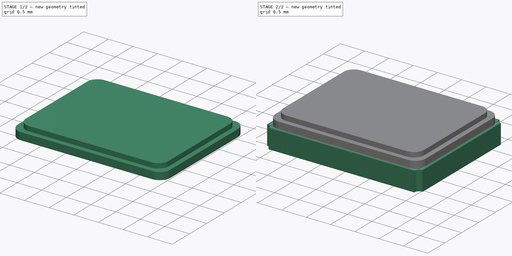
[diagram: build sequence overview — one tinted view per stage of 2, left to right]
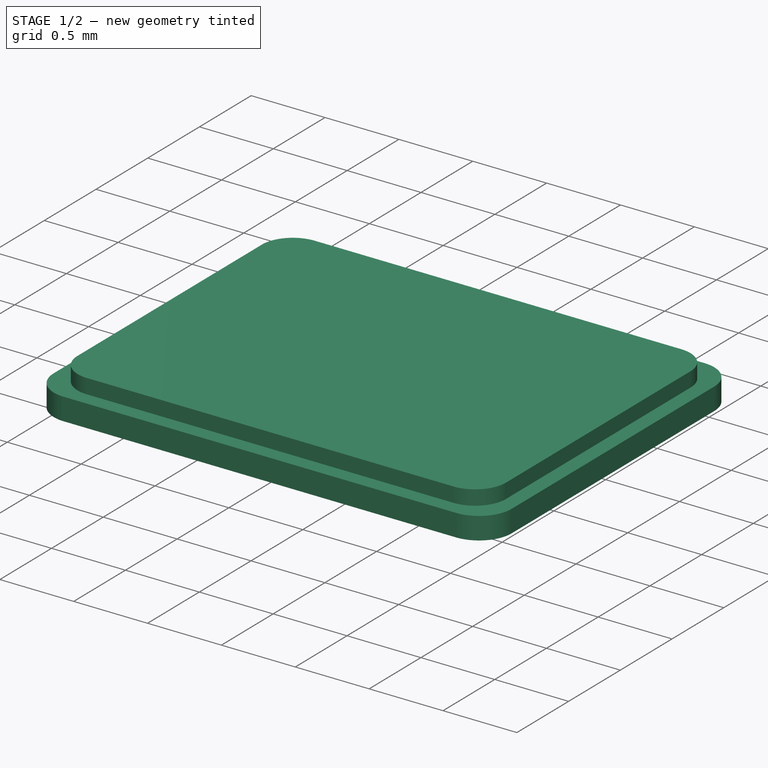
[diagram: stage 1 of 2 — iso view after this stage's code; geometry added in this stage tinted green]
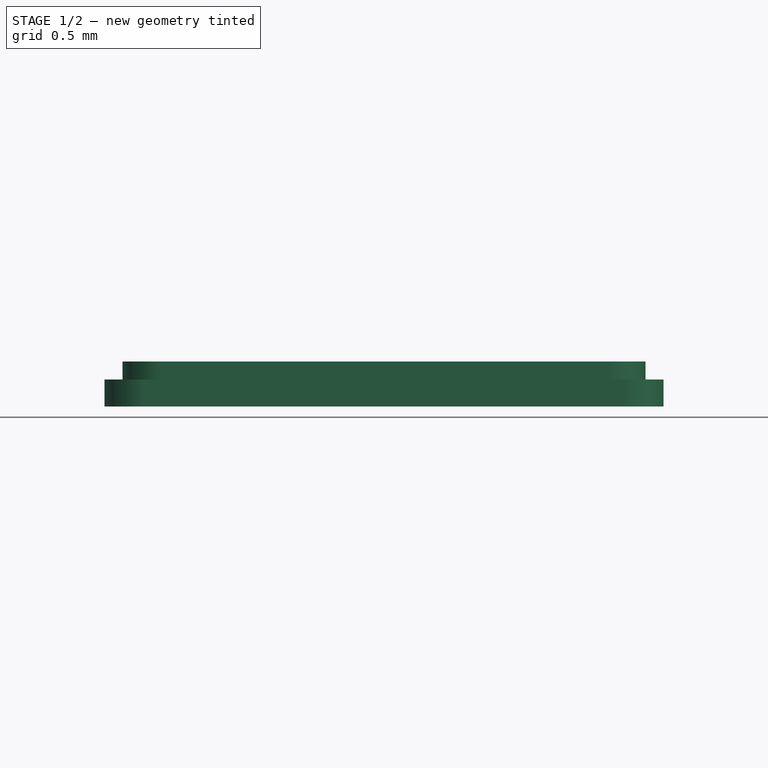
[diagram: stage 1 of 2 — front view after this stage's code; geometry added in this stage tinted green]
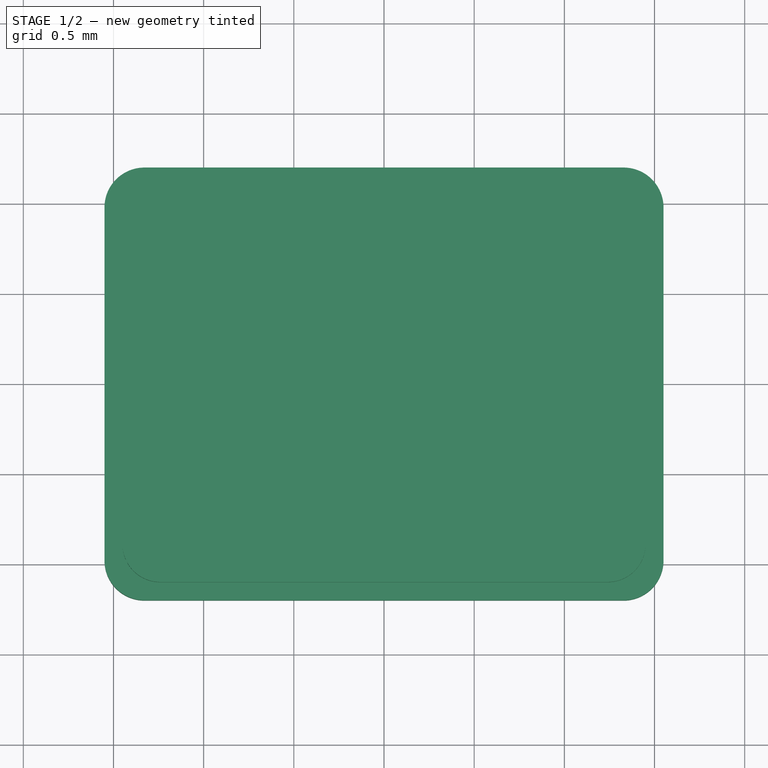
[diagram: stage 1 of 2 — top view after this stage's code; geometry added in this stage tinted green]
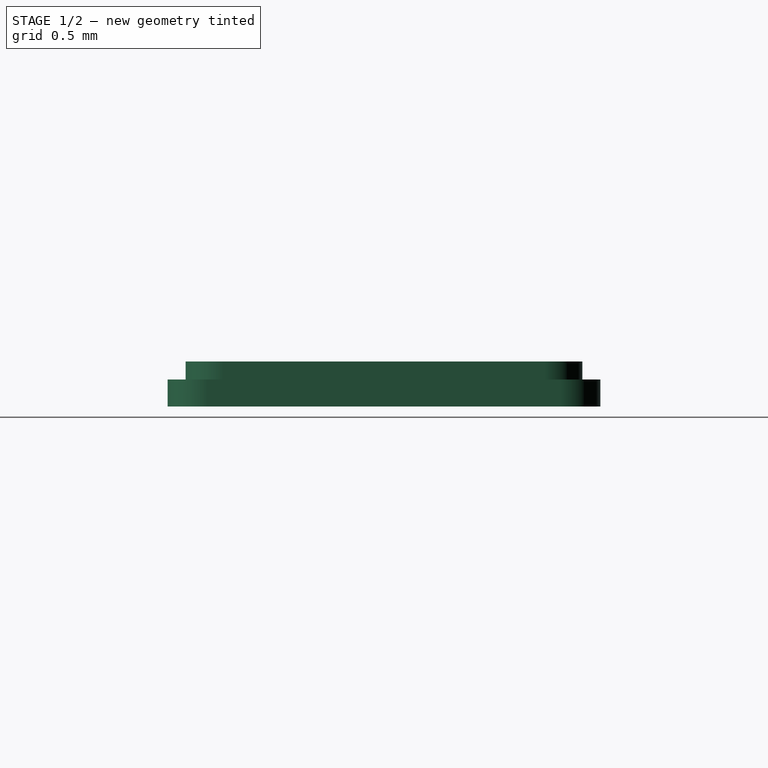
[diagram: stage 1 of 2 — right view after this stage's code; geometry added in this stage tinted green]
FCSTD DOCUMENT  (FreeCAD 0.17R13519 (Git))
Label: crystal_3225
License: All rights reserved
LicenseURL: http://en.wikipedia.org/wiki/All_rights_reserved
objects: Sketcher::SketchObject×3, Part::Extrusion×3, PartDesign::Body×1, Part::Feature×1
note: 8 computed .brp shape members not serialized (recipe doc carries the construction recipe); baked Part::Feature solids carry a one-line shape summary decoded from their .brp

FEATURE [Sketcher::SketchObject] Sketch002
  MapMode = 5
  Placement = pos=(0,0,0.54) rot=(0,0,1;0rad)
  sketch-geometry (8):
    g0: LineSegment StartX=-1.24069 StartY=-1.1 StartZ=0 EndX=1.24069 EndY=-1.1 EndZ=0
    g1: LineSegment StartX=1.45 StartY=-0.890693 StartZ=0 EndX=1.45 EndY=0.890693 EndZ=0
    g2: LineSegment StartX=1.24069 StartY=1.1 StartZ=0 EndX=-1.24069 EndY=1.1 EndZ=0
    g3: LineSegment StartX=-1.45 StartY=0.890693 StartZ=0 EndX=-1.45 EndY=-0.890693 EndZ=0
    g4: ArcOfCircle CenterX=1.24069 CenterY=0.890693 CenterZ=0 NormalX=0 NormalY=0 NormalZ=1 AngleXU=0 Radius=0.209307 StartAngle=0 EndAngle=1.5708
    g5: ArcOfCircle CenterX=1.24069 CenterY=-0.890693 CenterZ=0 NormalX=0 NormalY=0 NormalZ=1 AngleXU=0 Radius=0.209307 StartAngle=4.71239 EndAngle=6.28319
    g6: ArcOfCircle CenterX=-1.24069 CenterY=-0.890693 CenterZ=0 NormalX=0 NormalY=0 NormalZ=1 AngleXU=0 Radius=0.209307 StartAngle=3.14159 EndAngle=4.71239
    g7: ArcOfCircle CenterX=-1.24069 CenterY=0.890693 CenterZ=0 NormalX=0 NormalY=0 NormalZ=1 AngleXU=0 Radius=0.209307 StartAngle=1.5708 EndAngle=3.14159
  constraints (18):
    c: Horizontal(g0)
    c: Horizontal(g2)
    c: Vertical(g1)
    c: Vertical(g3)
    c: Tangent(g1,g4) = -1.5708
    c: Tangent(g2,g4) = -1.5708
    c: Tangent(g0,g5) = -1.5708
    c: Tangent(g1,g5) = -1.5708
    c: Tangent(g0,g6) = -1.5708
    c: Tangent(g3,g6) = -1.5708
    c: Tangent(g2,g7) = -1.5708
    c: Tangent(g3,g7) = -1.5708
    c: Equal(g5,g4)
    c: Equal(g4,g7)
    c: Equal(g7,g6)
    c: Symmetric(g4,g6,g-1)
    c: DistanceY(g0,g2) = 2.2
    c: DistanceX(g3,g1) = 2.9
FEATURE [Part::Extrusion] Extrude002
  Base = -> Sketch002
  Dir = (0,0,1)
  DirMode = 2
  FaceMakerClass = Part::FaceMakerBullseye
  LengthFwd = 0.1
  LengthRev = 0
  Solid = true
  Symmetric = false
FEATURE [Sketcher::SketchObject] Sketch001
  MapMode = 5
  Placement = pos=(0,0,0.39) rot=(0,0,1;0rad)
  sketch-geometry (8):
    g0: LineSegment StartX=-1.32821 StartY=-1.2 StartZ=0 EndX=1.32821 EndY=-1.2 EndZ=0
    g1: LineSegment StartX=1.55 StartY=-0.978206 StartZ=0 EndX=1.55 EndY=0.978206 EndZ=0
    g2: LineSegment StartX=1.32821 StartY=1.2 StartZ=0 EndX=-1.32821 EndY=1.2 EndZ=0
    g3: LineSegment StartX=-1.55 StartY=0.978206 StartZ=0 EndX=-1.55 EndY=-0.978206 EndZ=0
    g4: ArcOfCircle CenterX=1.32821 CenterY=0.978206 CenterZ=0 NormalX=0 NormalY=0 NormalZ=1 AngleXU=0 Radius=0.221794 StartAngle=0 EndAngle=1.5708
    g5: ArcOfCircle CenterX=1.32821 CenterY=-0.978206 CenterZ=0 NormalX=0 NormalY=0 NormalZ=1 AngleXU=0 Radius=0.221794 StartAngle=4.71239 EndAngle=6.28319
    g6: ArcOfCircle CenterX=-1.32821 CenterY=-0.978206 CenterZ=0 NormalX=0 NormalY=0 NormalZ=1 AngleXU=0 Radius=0.221794 StartAngle=3.14159 EndAngle=4.71239
    g7: ArcOfCircle CenterX=-1.32821 CenterY=0.978206 CenterZ=0 NormalX=0 NormalY=0 NormalZ=1 AngleXU=0 Radius=0.221794 StartAngle=1.5708 EndAngle=3.14159
  constraints (18):
    c: Horizontal(g0)
    c: Horizontal(g2)
    c: Vertical(g1)
    c: Vertical(g3)
    c: Tangent(g1,g4) = -1.5708
    c: Tangent(g2,g4) = -1.5708
    c: Tangent(g0,g5) = -1.5708
    c: Tangent(g1,g5) = -1.5708
    c: Tangent(g0,g6) = -1.5708
    c: Tangent(g3,g6) = -1.5708
    c: Tangent(g2,g7) = -1.5708
    c: Tangent(g3,g7) = -1.5708
    c: Symmetric(g6,g4,g-1)
    c: DistanceY(g0,g2) = 2.4
    c: DistanceX(g3,g1) = 3.1
    c: Equal(g5,g4)
    c: Equal(g4,g7)
    c: Equal(g7,g6)
FEATURE [Part::Extrusion] Extrude001
  Base = -> Sketch001
  Dir = (0,0,1)
  DirMode = 2
  FaceMakerClass = Part::FaceMakerBullseye
  LengthFwd = 0.15
  LengthRev = 0
  Solid = true
  Symmetric = false
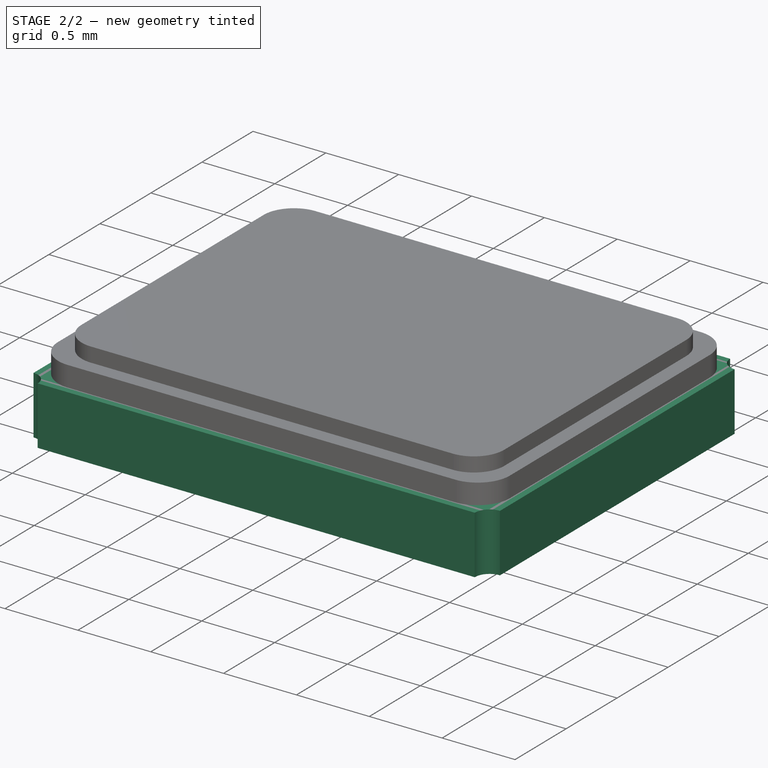
[diagram: stage 2 of 2 — iso view after this stage's code; geometry added in this stage tinted green]
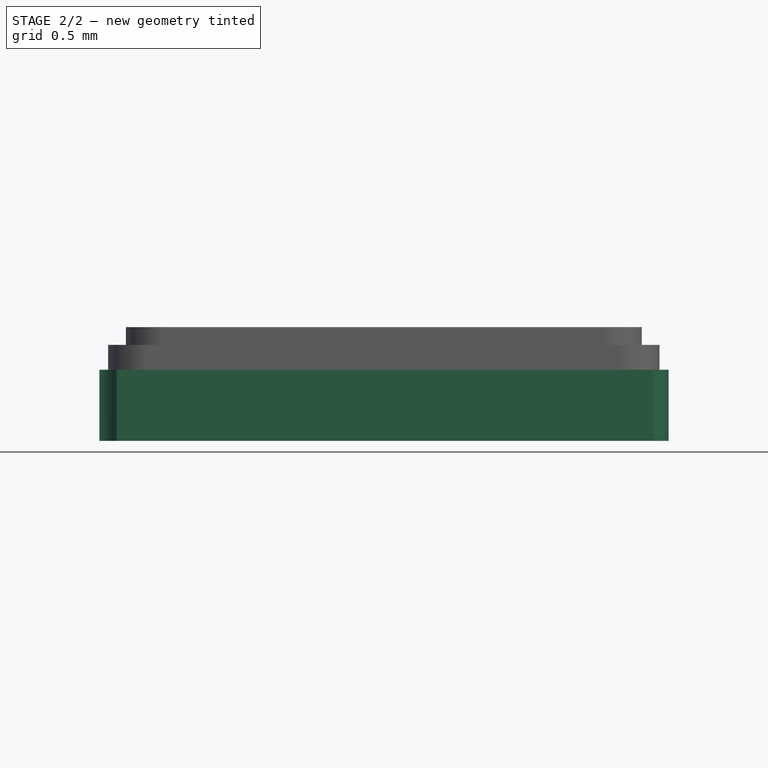
[diagram: stage 2 of 2 — front view after this stage's code; geometry added in this stage tinted green]
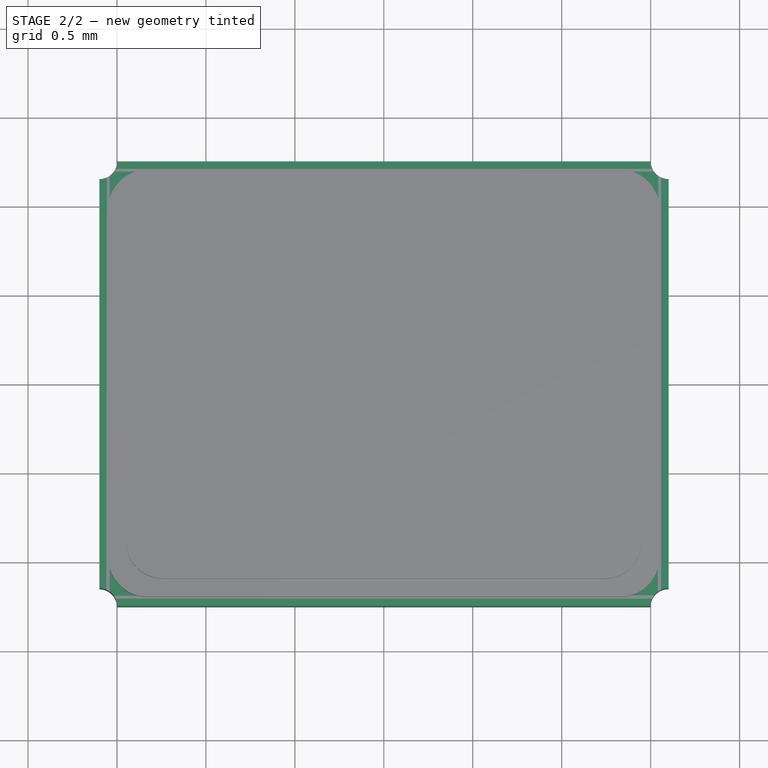
[diagram: stage 2 of 2 — top view after this stage's code; geometry added in this stage tinted green]
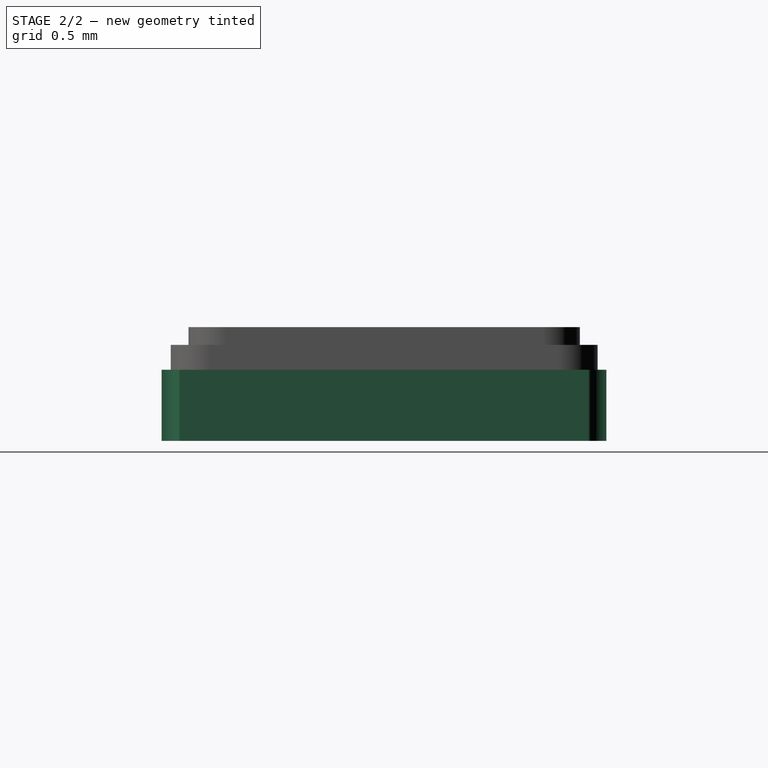
[diagram: stage 2 of 2 — right view after this stage's code; geometry added in this stage tinted green]
FEATURE [Sketcher::SketchObject] Sketch
  MapMode = 5
  Support = -> [XY_Plane]
  sketch-geometry (8):
    g0: LineSegment StartX=-1.49958 StartY=1.24951 StartZ=0 EndX=1.50042 EndY=1.24951 EndZ=0
    g1: ArcOfCircle CenterX=1.60042 CenterY=1.25021 CenterZ=0 NormalX=0 NormalY=0 NormalZ=1 AngleXU=0 Radius=0.100003 StartAngle=3.14867 EndAngle=4.71947
    g2: LineSegment StartX=1.60113 StartY=1.15021 StartZ=0 EndX=1.60113 EndY=-1.14979 EndZ=0
    g3: ArcOfCircle CenterX=1.59958 CenterY=-1.24979 CenterZ=0 NormalX=0 NormalY=0 NormalZ=1 AngleXU=0 Radius=0.100012 StartAngle=1.55532 EndAngle=3.15706
    g4: LineSegment StartX=1.49958 StartY=-1.25133 StartZ=0 EndX=-1.50042 EndY=-1.25133 EndZ=0
    g5: ArcOfCircle CenterX=-1.60042 CenterY=-1.25021 CenterZ=0 NormalX=0 NormalY=0 NormalZ=1 AngleXU=0 Radius=0.100006 StartAngle=6.272 EndAngle=7.84279
    g6: LineSegment StartX=-1.5993 StartY=-1.15021 StartZ=0 EndX=-1.5993 EndY=1.14979 EndZ=0
    g7: ArcOfCircle CenterX=-1.59958 CenterY=1.24979 CenterZ=0 NormalX=0 NormalY=0 NormalZ=1 AngleXU=0 Radius=0.1 StartAngle=4.71519 EndAngle=6.28039
  constraints (24):
    c: Horizontal(g0)
    c: DistanceX(g0,g0) = 3
    c: Coincident(g1,g0)
    c: DistanceX(g0,g1) = 0.1
    c: Angle(g1) = 1.5708
    c: Coincident(g2,g1)
    c: Vertical(g2)
    c: DistanceY(g2,g2) = 2.3
    c: Coincident(g3,g2)
    c: DistanceY(g3,g2) = 0.1
    c: Coincident(g4,g3)
    c: Horizontal(g4)
    c: DistanceX(g3,g3) = 0.1
    c: DistanceX(g4,g4) = 3
    c: Coincident(g5,g4)
    c: DistanceX(g5,g4) = 0.1
    c: DistanceY(g5,g5) = 0.1
    c: Coincident(g6,g5)
    c: Vertical(g6)
    c: DistanceY(g6,g6) = 2.3
    c: Coincident(g7,g6)
    c: Coincident(g7,g0)
    c: DistanceY(g6,g7) = 0.1
    c: Symmetric(g5,g1,g-1)
FEATURE [PartDesign::Body] Body
  Group = -> [Sketch,Sketch001,Sketch002]
  Origin = -> Origin
FEATURE [Part::Extrusion] Extrude
  Base = -> Sketch
  Dir = (0,0,1)
  DirMode = 2
  FaceMakerClass = Part::FaceMakerBullseye
  LengthFwd = 0.4
  LengthRev = 0
  Solid = true
  Symmetric = false
FEATURE [Part::Feature] Shape  label="Crystal_3225"
  shape: bbox 3.2 x 2.501 x 0.64 mm, 30 faces, 3 solids (baked)
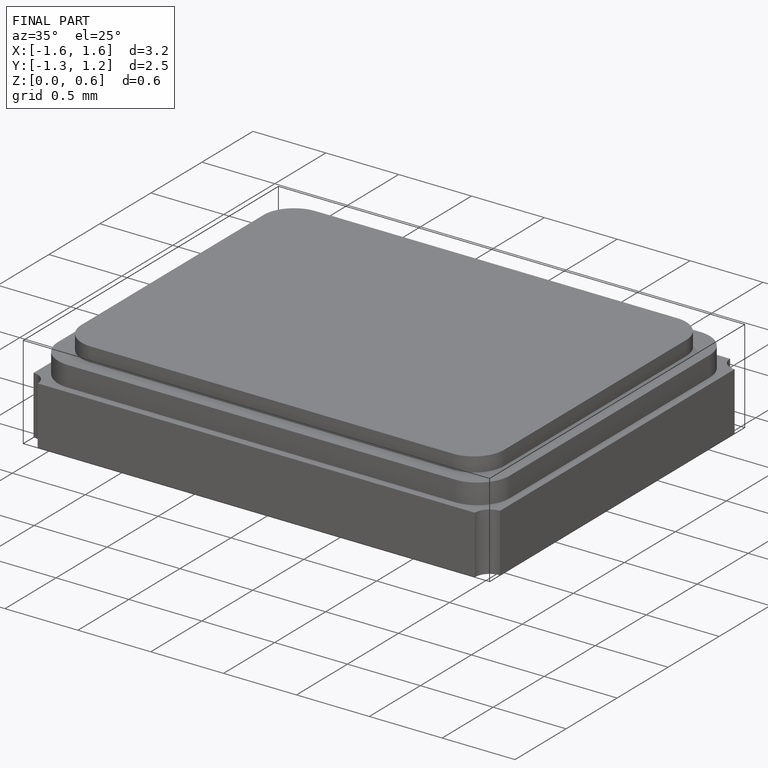
[diagram: finished part — iso view with bounding-box wireframe]
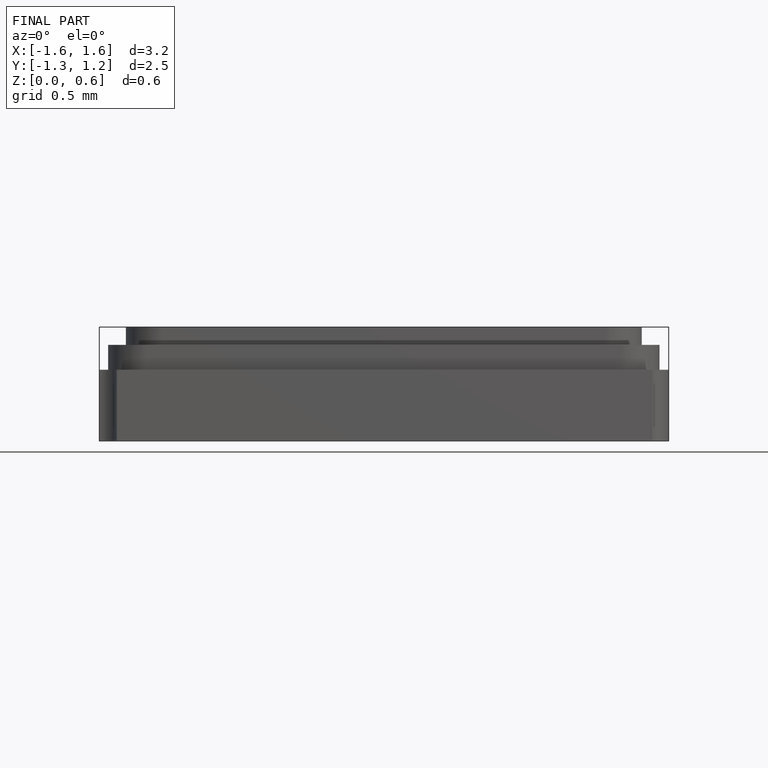
[diagram: finished part — front view with bounding-box wireframe]
